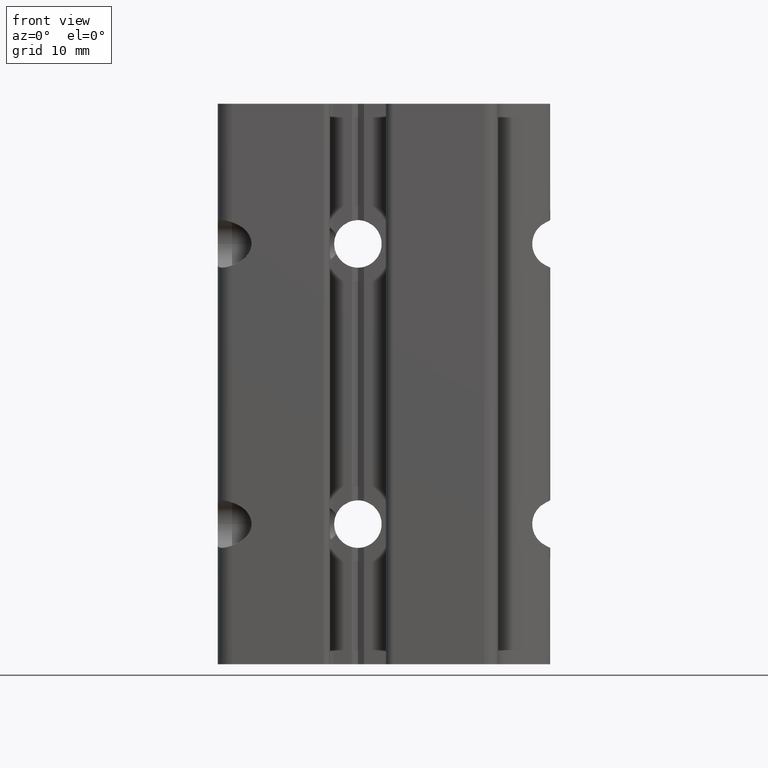
[diagram: clean part render]
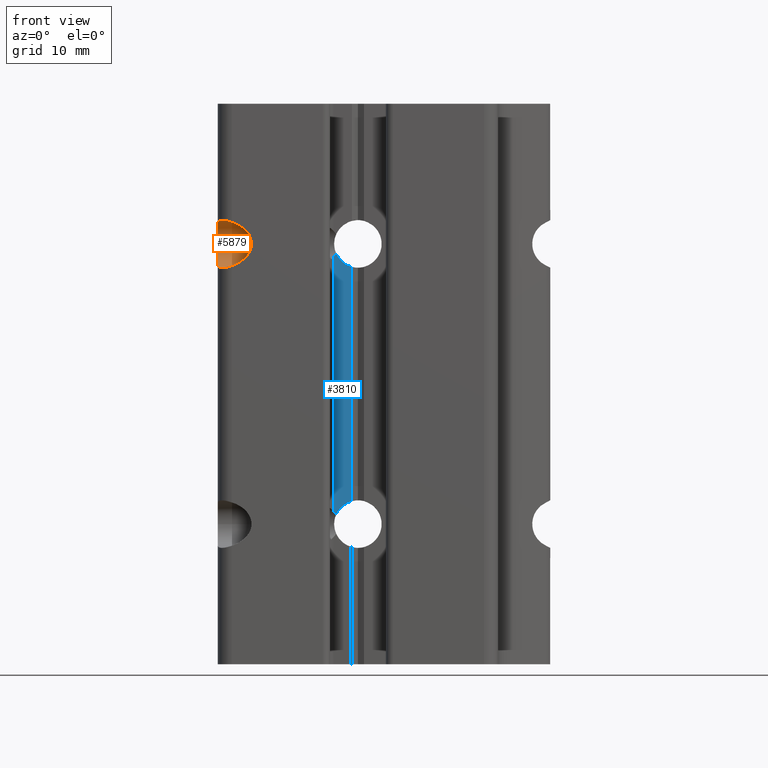
[diagram: same view with the hole feature highlighted: cylindrical wall and planar end face, labeled with their STEP entity ids]
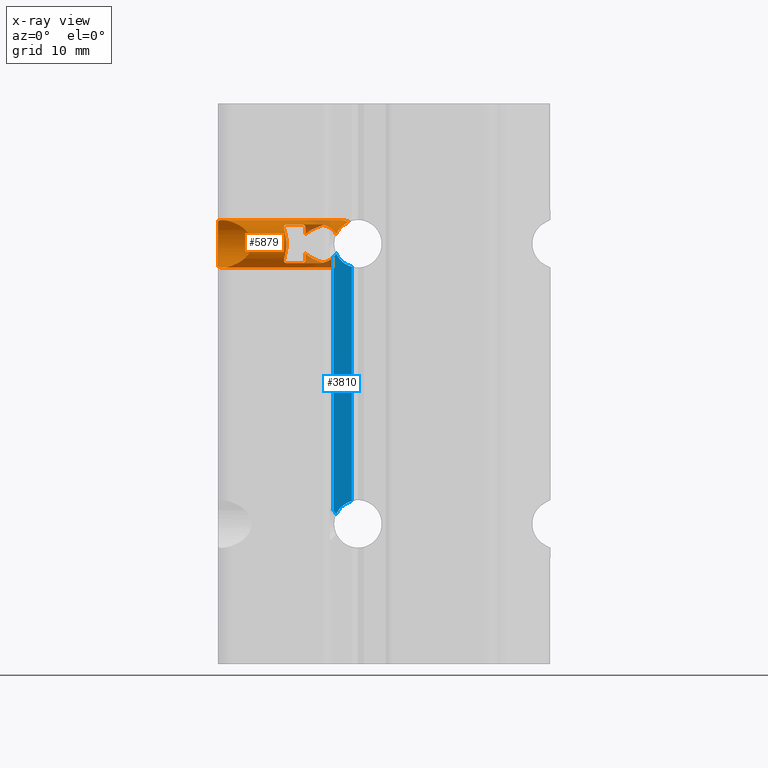
[diagram: x-ray of the same camera — body ghosted, the hole faces saturated]
A machine part, front view. The highlighted faces form one hole feature of diameter 6.8 mm: the cylindrical wall (entity #5879, orange) and its adjacent planar end face (entity #3810, blue) — they share a circular edge in the B-rep.
The next image is the same camera in x-ray (body ghosted, the hole faces saturated) — the bore reads through the body.
Wall:
#2442=CARTESIAN_POINT('',(-7.499971634736994,-3.106621162099145,61.381546457325761));
#2443=VERTEX_POINT('',#2442);
#2451=CARTESIAN_POINT('',(-7.499971634498252,-3.500182323104127,61.886832594038701));
#2452=VERTEX_POINT('',#2451);
#2453=CARTESIAN_POINT('',(-7.499971634498252,-7.500005773773410,59.999849360606760));
#2454=DIRECTION('',(-1.0,0.0,0.0));
#2455=DIRECTION('',(0.0,-1.0,0.0));
#2456=AXIS2_PLACEMENT_3D('',#2453,#2454,#2455);
#2457=ELLIPSE('',#2456,4.808326688644007,3.399998865186262);
#2458=EDGE_CURVE('',#2452,#2443,#2457,.T.);
#2482=CARTESIAN_POINT('',(-7.499971634736994,-3.106621162099145,58.618152263887758));
#2483=VERTEX_POINT('',#2482);
#2484=CARTESIAN_POINT('',(-7.499971634498252,-3.500182323104127,58.112866127174819));
#2485=VERTEX_POINT('',#2484);
#2486=CARTESIAN_POINT('',(-7.499971634498252,-7.500005773773410,59.999849360606760));
#2487=DIRECTION('',(-1.0,0.0,0.0));
#2488=DIRECTION('',(0.0,-1.0,0.0));
#2489=AXIS2_PLACEMENT_3D('',#2486,#2487,#2488);
#2490=ELLIPSE('',#2489,4.808326688644007,3.399998865186262);
#2491=EDGE_CURVE('',#2483,#2485,#2490,.T.);
#2575=CARTESIAN_POINT('',(-8.085764045833912,-5.257353564094956,62.749384761778387));
#2576=VERTEX_POINT('',#2575);
#2577=CARTESIAN_POINT('',(-8.085764045833457,-5.257353564094956,62.749384761778387));
#2578=CARTESIAN_POINT('',(-7.982279876050143,-5.153869394321646,62.749384810079718));
#2579=CARTESIAN_POINT('',(-7.767712126736114,-4.887898252004106,62.723348640122808));
#2580=CARTESIAN_POINT('',(-7.545883289831181,-4.405846209467654,62.582042972496716));
#2581=CARTESIAN_POINT('',(-7.464258504815916,-3.898807091223262,62.297594895798717));
#2582=CARTESIAN_POINT('',(-7.483344197200950,-3.616632889250013,62.027874678270258));
#2583=CARTESIAN_POINT('',(-7.499971634498252,-3.500182323104127,61.886832594038665));
#2584=B_SPLINE_CURVE_WITH_KNOTS('',3,(#2577,#2578,#2579,#2580,#2581,#2582,#2583),.UNSPECIFIED.,.F.,.U.,(4,1,1,1,4),(0.0,0.440287795231268,1.017256784750726,1.623386593909712,2.176012819118998),.UNSPECIFIED.);
#2585=EDGE_CURVE('',#2576,#2452,#2584,.T.);
#2623=CARTESIAN_POINT('',(-8.085764045833912,-5.257353564094956,57.250313959435132));
#2624=VERTEX_POINT('',#2623);
#2631=CARTESIAN_POINT('',(-7.499971634498252,-3.500182323104127,58.112866127174854));
#2632=CARTESIAN_POINT('',(-7.483344197200950,-3.616632889250013,57.971824042942927));
#2633=CARTESIAN_POINT('',(-7.464258504817735,-3.898807091225535,57.702103825415165));
#2634=CARTESIAN_POINT('',(-7.545883289831181,-4.405846209468109,57.417655748717124));
#2635=CARTESIAN_POINT('',(-7.767712126735660,-4.887898252004106,57.276350081090783));
#2636=CARTESIAN_POINT('',(-7.982279876050143,-5.153869394321646,57.250313911133802));
#2637=CARTESIAN_POINT('',(-8.085764045833457,-5.257353564094956,57.250313959435132));
#2638=B_SPLINE_CURVE_WITH_KNOTS('',3,(#2631,#2632,#2633,#2634,#2635,#2636,#2637),.UNSPECIFIED.,.F.,.U.,(4,1,1,1,4),(0.0,0.552626225210714,1.158756034367641,1.735725023887606,2.176012819118894),.UNSPECIFIED.);
#2639=EDGE_CURVE('',#2485,#2624,#2638,.T.);
#2686=CARTESIAN_POINT('',(-12.939314034142626,-10.110903551928914,62.749382496376917));
#2687=VERTEX_POINT('',#2686);
#2688=CARTESIAN_POINT('',(-12.939306397215695,-10.110911188848913,62.749390352457034));
#2689=DIRECTION('',(0.707106460385930,0.707107101987020,0.0));
#2690=VECTOR('',#2689,6.863956218785549);
#2691=LINE('',#2688,#2690);
#2692=EDGE_CURVE('',#2687,#2576,#2691,.T.);
#2725=CARTESIAN_POINT('',(-12.939314034142626,-10.110903551928914,57.250316224836602));
#2726=VERTEX_POINT('',#2725);
#2733=CARTESIAN_POINT('',(-8.085758611106254,-5.257358998817683,57.250308368756485));
#2734=DIRECTION('',(-0.707106460385930,-0.707107101987020,0.0));
#2735=VECTOR('',#2734,6.863956218785549);
#2736=LINE('',#2733,#2735);
#2737=EDGE_CURVE('',#2624,#2726,#2736,.T.);
#2779=CARTESIAN_POINT('',(-14.987549718576702,-10.179263963146695,59.999849360606760));
#2780=VERTEX_POINT('',#2779);
#2781=CARTESIAN_POINT('',(-14.987549718576702,-10.179263963146695,59.999849360606760));
#2782=CARTESIAN_POINT('',(-14.987549718576702,-10.179263963146695,60.216054923921057));
#2783=CARTESIAN_POINT('',(-14.954683020001994,-10.209085999840227,60.679811763384222));
#2784=CARTESIAN_POINT('',(-14.804351924289676,-10.325095156179032,61.287959628024339));
#2785=CARTESIAN_POINT('',(-14.553535148006631,-10.453815251347351,61.798996916411433));
#2786=CARTESIAN_POINT('',(-14.272771520226343,-10.536103065002862,62.151515232334880));
#2787=CARTESIAN_POINT('',(-13.946848644926376,-10.560540068313003,62.420359149813407));
#2788=CARTESIAN_POINT('',(-13.590389929570392,-10.511442196723692,62.615600314994836));
#2789=CARTESIAN_POINT('',(-13.230716702602422,-10.358376754295932,62.727108607660554));
#2790=CARTESIAN_POINT('',(-13.021038980597041,-10.192628498375598,62.749382458231651));
#2791=CARTESIAN_POINT('',(-12.939314034142626,-10.110903551928914,62.749382496376931));
#2792=B_SPLINE_CURVE_WITH_KNOTS('',3,(#2781,#2782,#2783,#2784,#2785,#2786,#2787,#2788,#2789,#2790,#2791),.UNSPECIFIED.,.F.,.U.,(4,1,1,1,1,1,1,1,4),(0.0,0.649604591902576,1.389873945673407,1.898969033738773,2.392249530753041,2.753909929009676,3.160419108480753,3.606886868526840,3.954781283208519),.UNSPECIFIED.);
#2793=EDGE_CURVE('',#2780,#2687,#2792,.T.);
#2795=CARTESIAN_POINT('',(-12.939314034142626,-10.110903551928914,57.250316224836588));
#2796=CARTESIAN_POINT('',(-13.021038980596586,-10.192628498374688,57.250316262981869));
#2797=CARTESIAN_POINT('',(-13.230716702601967,-10.358376754296387,57.272590113552567));
#2798=CARTESIAN_POINT('',(-13.590389929569938,-10.511442196722328,57.384098406218698));
#2799=CARTESIAN_POINT('',(-13.946848644926376,-10.560540068312548,57.579339571400212));
#2800=CARTESIAN_POINT('',(-14.272771520227707,-10.536103065002408,57.848183488879158));
#2801=CARTESIAN_POINT('',(-14.553535148006631,-10.453815251348260,58.200701804802257));
#2802=CARTESIAN_POINT('',(-14.804351924289676,-10.325095156179486,58.711739093189195));
#2803=CARTESIAN_POINT('',(-14.954683020002449,-10.209085999840227,59.319886957829283));
#2804=CARTESIAN_POINT('',(-14.987549718576702,-10.179263963146695,59.783643797292456));
#2805=CARTESIAN_POINT('',(-14.987549718576702,-10.179263963146695,59.999849360606760));
#2806=B_SPLINE_CURVE_WITH_KNOTS('',3,(#2795,#2796,#2797,#2798,#2799,#2800,#2801,#2802,#2803,#2804,#2805),.UNSPECIFIED.,.F.,.U.,(4,1,1,1,1,1,1,1,4),(0.0,0.347894414679059,0.794362174728163,1.200871354199902,1.562531752456226,2.055812249469818,2.564907337535183,3.305176691306011,3.954781283208590),.UNSPECIFIED.);
#2807=EDGE_CURVE('',#2726,#2780,#2806,.T.);
#3036=CARTESIAN_POINT('',(-19.999968859925957,-17.999996012029897,56.907931276393747));
#3037=VERTEX_POINT('',#3036);
#3044=CARTESIAN_POINT('',(-19.999968859925957,-15.191687652571545,59.999849360606760));
#3045=VERTEX_POINT('',#3044);
#3046=CARTESIAN_POINT('',(-19.999968859925957,-20.000014341215774,59.999849360606760));
#3047=DIRECTION('',(-1.0,0.0,0.0));
#3048=DIRECTION('',(0.0,-1.0,0.0));
#3049=AXIS2_PLACEMENT_3D('',#3046,#3047,#3048);
#3050=ELLIPSE('',#3049,4.808326688644007,3.399998865186262);
#3051=EDGE_CURVE('',#3045,#3037,#3050,.T.);
#3053=CARTESIAN_POINT('',(-19.999968859925957,-17.999996012029897,63.091767444819773));
#3054=VERTEX_POINT('',#3053);
#3055=CARTESIAN_POINT('',(-19.999968859925957,-20.000014341215774,59.999849360606760));
#3056=DIRECTION('',(-1.0,0.0,0.0));
#3057=DIRECTION('',(0.0,-1.0,0.0));
#3058=AXIS2_PLACEMENT_3D('',#3055,#3056,#3057);
#3059=ELLIPSE('',#3058,4.808326688644007,3.399998865186262);
#3060=EDGE_CURVE('',#3054,#3045,#3059,.T.);
#3085=CARTESIAN_POINT('',(-17.999969312036228,-19.999995559919626,63.091779006503430));
#3086=VERTEX_POINT('',#3085);
#3087=CARTESIAN_POINT('',(-17.999969312036228,-19.999995559919626,63.091779006503380));
#3088=CARTESIAN_POINT('',(-18.092872504029401,-19.999995559919626,63.121825738967217));
#3089=CARTESIAN_POINT('',(-18.314480211691262,-19.984584388185795,63.192439341211184));
#3090=CARTESIAN_POINT('',(-18.676196183403590,-19.897731123186986,63.296052420188943));
#3091=CARTESIAN_POINT('',(-19.078881972422550,-19.706041076997735,63.381544859075397));
#3092=CARTESIAN_POINT('',(-19.447535525353487,-19.407792979262467,63.411150445314888));
#3093=CARTESIAN_POINT('',(-19.750684159915181,-19.009055912690656,63.371113338430661));
#3094=CARTESIAN_POINT('',(-19.952533352585760,-18.533193688047049,63.260775731233750));
#3095=CARTESIAN_POINT('',(-19.999968859925957,-18.179933770232310,63.149964084927291));
#3096=CARTESIAN_POINT('',(-19.999968859925957,-17.999996012029897,63.091767444819745));
#3097=B_SPLINE_CURVE_WITH_KNOTS('',3,(#3087,#3088,#3089,#3090,#3091,#3092,#3093,#3094,#3095,#3096),.UNSPECIFIED.,.F.,.U.,(4,1,1,1,1,1,1,4),(0.0,0.293135411193030,0.697351950041764,1.153056265474572,1.645137220654180,2.108298422242484,2.646691606505831,3.215700329866476),.UNSPECIFIED.);
#3098=EDGE_CURVE('',#3086,#3054,#3097,.T.);
#3139=CARTESIAN_POINT('',(-17.999969312036228,-19.999995559919626,56.907919714710090));
#3140=VERTEX_POINT('',#3139);
#3147=CARTESIAN_POINT('',(-19.999968859925957,-17.999996012029897,56.907931276393775));
#3148=CARTESIAN_POINT('',(-19.999968859925957,-18.179933770232310,56.849734636286271));
#3149=CARTESIAN_POINT('',(-19.952533352584851,-18.533193688046595,56.738922989979535));
#3150=CARTESIAN_POINT('',(-19.750684159916091,-19.009055912691565,56.628585382782944));
#3151=CARTESIAN_POINT('',(-19.447535525353487,-19.407792979264286,56.588548275898610));
#3152=CARTESIAN_POINT('',(-19.078881972421641,-19.706041076996371,56.618153862138129));
#3153=CARTESIAN_POINT('',(-18.676196183404500,-19.897731123188805,56.703646301024570));
#3154=CARTESIAN_POINT('',(-18.314480211691262,-19.984584388186704,56.807259380002343));
#3155=CARTESIAN_POINT('',(-18.092872504029401,-19.999995559919626,56.877872982246302));
#3156=CARTESIAN_POINT('',(-17.999969312036228,-19.999995559919626,56.907919714710140));
#3157=B_SPLINE_CURVE_WITH_KNOTS('',3,(#3147,#3148,#3149,#3150,#3151,#3152,#3153,#3154,#3155,#3156),.UNSPECIFIED.,.F.,.U.,(4,1,1,1,1,1,1,4),(0.0,0.569008723360272,1.107401907624042,1.570563109212346,2.062644064391954,2.518348379824762,2.922564918673498,3.215700329866516),.UNSPECIFIED.);
#3158=EDGE_CURVE('',#3037,#3140,#3157,.T.);
#3208=CARTESIAN_POINT('',(-19.999950078647089,-19.999995559919626,59.999849360606760));
#3209=DIRECTION('',(0.0,-1.0,0.0));
#3210=DIRECTION('',(-1.0,0.0,0.0));
#3211=AXIS2_PLACEMENT_3D('',#3208,#3209,#3210);
#3212=ELLIPSE('',#3211,4.808322325758051,3.399998865186262);
#3213=EDGE_CURVE('',#3140,#3086,#3212,.T.);
#3424=CARTESIAN_POINT('',(-10.110887184508101,-12.939335806580857,57.250296966114320));
#3425=VERTEX_POINT('',#3424);
#3432=CARTESIAN_POINT('',(-10.110887184508101,-12.939335806580857,62.749401755099200));
#3433=VERTEX_POINT('',#3432);
#3434=CARTESIAN_POINT('',(-10.110887184508101,-12.939335806580857,62.749401755099214));
#3435=CARTESIAN_POINT('',(-10.212657414958812,-13.041106037030659,62.749401802594953));
#3436=CARTESIAN_POINT('',(-10.404476738819994,-13.299082307173649,62.716205503895978));
#3437=CARTESIAN_POINT('',(-10.545854627916924,-13.724451716261228,62.558479491808200));
#3438=CARTESIAN_POINT('',(-10.558735903113302,-14.126178981369321,62.291333786681221));
#3439=CARTESIAN_POINT('',(-10.498349647898522,-14.418212990749907,61.982581807830279));
#3440=CARTESIAN_POINT('',(-10.400040068862836,-14.670263546347996,61.587296133814121));
#3441=CARTESIAN_POINT('',(-10.283811465738381,-14.861070371195638,61.100854044643150));
#3442=CARTESIAN_POINT('',(-10.187901956999212,-14.978753877876898,60.477852794105331));
#3443=CARTESIAN_POINT('',(-10.167249099261426,-15.000801672009402,59.806107894091845));
#3444=CARTESIAN_POINT('',(-10.237231785106815,-14.922006228610826,59.143738361857750));
#3445=CARTESIAN_POINT('',(-10.359840514850021,-14.745803664244249,58.568168996130055));
#3446=CARTESIAN_POINT('',(-10.476888478872752,-14.493248162702457,58.110593991242496));
#3447=CARTESIAN_POINT('',(-10.545931506421766,-14.206725322264447,57.785970648885822));
#3448=CARTESIAN_POINT('',(-10.556306237373974,-13.902494032493905,57.553289336647524));
#3449=CARTESIAN_POINT('',(-10.502238647497506,-13.563494209844976,57.373967870183549));
#3450=CARTESIAN_POINT('',(-10.353083866772977,-13.221810932984226,57.270779796350254));
#3451=CARTESIAN_POINT('',(-10.186484135225783,-13.014932757298084,57.250296930833528));
#3452=CARTESIAN_POINT('',(-10.110887184508101,-12.939335806580857,57.250296966114306));
#3453=B_SPLINE_CURVE_WITH_KNOTS('',3,(#3434,#3435,#3436,#3437,#3438,#3439,#3440,#3441,#3442,#3443,#3444,#3445,#3446,#3447,#3448,#3449,#3450,#3451,#3452),.UNSPECIFIED.,.F.,.U.,(4,1,1,1,1,1,1,1,1,1,1,1,1,1,1,1,4),(0.0,0.434009623499088,0.950287193074688,1.398001269463963,1.864563906964387,2.227920565799847,2.830547978295661,3.461313744651695,4.143069341352543,4.837663163507572,5.462829787095446,5.976503883373006,6.435861686941121,6.768522796322628,7.119267400949641,7.588008964898661,7.909649085148575),.UNSPECIFIED.);
#3454=EDGE_CURVE('',#3433,#3425,#3453,.T.);
#3480=CARTESIAN_POINT('',(-5.257334492823247,-8.085783114958758,62.749399489948715));
#3481=VERTEX_POINT('',#3480);
#3482=CARTESIAN_POINT('',(-5.257329058657202,-8.085788549119870,62.749393899900809));
#3483=DIRECTION('',(-0.707106460385930,-0.707107101987020,0.0));
#3484=VECTOR('',#3483,6.863960042228078);
#3485=LINE('',#3482,#3484);
#3486=EDGE_CURVE('',#3481,#3433,#3485,.T.);
#3519=CARTESIAN_POINT('',(-5.257334492823247,-8.085783114958758,57.250299231264805));
#3520=VERTEX_POINT('',#3519);
#3527=CARTESIAN_POINT('',(-10.110879548347555,-12.939343442734469,57.250304821312710));
#3528=DIRECTION('',(0.707106460385930,0.707107101987020,0.0));
#3529=VECTOR('',#3528,6.863960042228078);
#3530=LINE('',#3527,#3529);
#3531=EDGE_CURVE('',#3425,#3520,#3530,.T.);
#3573=CARTESIAN_POINT('',(-3.500151814412675,-7.499998334969405,61.886840479374172));
#3574=VERTEX_POINT('',#3573);
#3575=CARTESIAN_POINT('',(-3.500151814412675,-7.499998334969405,61.886840479374165));
#3576=CARTESIAN_POINT('',(-3.612103970648604,-7.499998334969405,62.005491813362070));
#3577=CARTESIAN_POINT('',(-3.898319631759023,-7.514880772915149,62.255035954728278));
#3578=CARTESIAN_POINT('',(-4.396530902415179,-7.620779623664475,62.530030512514202));
#3579=CARTESIAN_POINT('',(-4.877847660605767,-7.828906770427693,62.685725179909490));
#3580=CARTESIAN_POINT('',(-5.151625859849901,-8.006491958504284,62.735811843439180));
#3581=CARTESIAN_POINT('',(-5.257334492823247,-8.085783114958758,62.749399489948672));
#3582=B_SPLINE_CURVE_WITH_KNOTS('',3,(#3575,#3576,#3577,#3578,#3579,#3580,#3581),.UNSPECIFIED.,.F.,.U.,(4,1,1,1,4),(0.0,0.490305732284151,1.131757988528495,1.718898860972804,2.117880005024734),.UNSPECIFIED.);
#3583=EDGE_CURVE('',#3574,#3481,#3582,.T.);
#3621=CARTESIAN_POINT('',(-3.500151814412675,-7.499998334969405,58.112858241839348));
#3622=VERTEX_POINT('',#3621);
#3629=CARTESIAN_POINT('',(-5.257334492823247,-8.085783114958758,57.250299231264847));
#3630=CARTESIAN_POINT('',(-5.151625859849901,-8.006491958504284,57.263886877774340));
#3631=CARTESIAN_POINT('',(-4.877847660606676,-7.828906770428603,57.313973541304037));
#3632=CARTESIAN_POINT('',(-4.396530902412906,-7.620779623662656,57.469668208699304));
#3633=CARTESIAN_POINT('',(-3.898319631759478,-7.514880772916513,57.744662766485263));
#3634=CARTESIAN_POINT('',(-3.612103970648604,-7.499998334969405,57.994206907851449));
#3635=CARTESIAN_POINT('',(-3.500151814412675,-7.499998334969405,58.112858241839362));
#3636=B_SPLINE_CURVE_WITH_KNOTS('',3,(#3629,#3630,#3631,#3632,#3633,#3634,#3635),.UNSPECIFIED.,.F.,.U.,(4,1,1,1,4),(0.0,0.398981144051929,0.986122016496259,1.627574272740602,2.117880005024756),.UNSPECIFIED.);
#3637=EDGE_CURVE('',#3520,#3622,#3636,.T.);
#3684=CARTESIAN_POINT('',(-3.106572072286326,-7.499998335053988,61.381528176877744));
#3685=VERTEX_POINT('',#3684);
#3686=CARTESIAN_POINT('',(-7.499964195700613,-7.499998334968950,59.999849360606760));
#3687=DIRECTION('',(-1.726350E-013,-1.0,0.0));
#3688=DIRECTION('',(-1.0,1.726350E-013,0.0));
#3689=AXIS2_PLACEMENT_3D('',#3686,#3687,#3688);
#3690=ELLIPSE('',#3689,4.808322325757221,3.399998865186262);
#3691=EDGE_CURVE('',#3685,#3574,#3690,.T.);
#3792=CARTESIAN_POINT('',(-3.106572072286326,-7.499998335053988,58.618170544335314));
#3793=VERTEX_POINT('',#3792);
#3801=CARTESIAN_POINT('',(-7.499964195700613,-7.499998334968950,59.999849360606760));
#3802=DIRECTION('',(-1.726350E-013,-1.0,0.0));
#3803=DIRECTION('',(-1.0,1.726350E-013,0.0));
#3804=AXIS2_PLACEMENT_3D('',#3801,#3802,#3803);
#3805=ELLIPSE('',#3804,4.808322325757221,3.399998865186262);
#3806=EDGE_CURVE('',#3622,#3793,#3805,.T.);
#5771=CARTESIAN_POINT('',(5.306351534401074,5.306329015088977,59.999849360606760));
#5772=DIRECTION('',(0.707106460385930,0.707107101987020,0.0));
#5773=DIRECTION('',(-0.707107101987020,0.707106460385930,0.0));
#5774=AXIS2_PLACEMENT_3D('',#5771,#5772,#5773);
#5775=CYLINDRICAL_SURFACE('',#5774,3.399998865186262);
#5776=ORIENTED_EDGE('',*,*,#2639,.T.);
#5777=ORIENTED_EDGE('',*,*,#2737,.T.);
#5778=ORIENTED_EDGE('',*,*,#2807,.T.);
#5779=CARTESIAN_POINT('',(-14.987549718576879,-10.179263963146823,59.999849360606760));
#5780=DIRECTION('',(-0.707106460385929,-0.707107101987021,0.0));
#5781=VECTOR('',#5780,7.088634345970156);
#5782=LINE('',#5779,#5781);
#5783=EDGE_CURVE('',#2780,#3045,#5782,.T.);
#5784=ORIENTED_EDGE('',*,*,#5783,.T.);
#5785=ORIENTED_EDGE('',*,*,#3051,.T.);
#5786=ORIENTED_EDGE('',*,*,#3158,.T.);
#5787=ORIENTED_EDGE('',*,*,#3213,.T.);
#5788=ORIENTED_EDGE('',*,*,#3098,.T.);
#5789=ORIENTED_EDGE('',*,*,#3060,.T.);
#5790=ORIENTED_EDGE('',*,*,#5783,.F.);
#5791=ORIENTED_EDGE('',*,*,#2793,.T.);
#5792=ORIENTED_EDGE('',*,*,#2692,.T.);
#5793=ORIENTED_EDGE('',*,*,#2585,.T.);
#5794=ORIENTED_EDGE('',*,*,#2458,.T.);
#5795=CARTESIAN_POINT('',(-3.141178742926059,-1.301148872441900,63.141040745541638));
#5796=VERTEX_POINT('',#5795);
#5797=CARTESIAN_POINT('',(-7.499971634736994,-3.106621162098691,61.381546457325733));
#5798=CARTESIAN_POINT('',(-7.347939182597656,-3.043647218097703,61.523136293173259));
#5799=CARTESIAN_POINT('',(-7.046703862092272,-2.918871381620647,61.756649473027082));
#5800=CARTESIAN_POINT('',(-6.413123401763642,-2.656433600709079,62.141417837782157));
#5801=CARTESIAN_POINT('',(-5.661512972248602,-2.345106117021260,62.479147288119258));
#5802=CARTESIAN_POINT('',(-4.515755912890654,-1.870517922422096,62.862621367123474));
#5803=CARTESIAN_POINT('',(-3.689338187131853,-1.528203322421177,63.046991898901780));
#5804=CARTESIAN_POINT('',(-3.141173658591470,-1.301146444533060,63.141041523587035));
#5805=B_SPLINE_CURVE_WITH_KNOTS('',3,(#5797,#5798,#5799,#5800,#5801,#5802,#5803,#5804),.UNSPECIFIED.,.F.,.U.,(4,1,1,1,1,4),(0.0,0.651823287259006,1.199065122779237,2.357121415700803,3.288301367612448,5.091394312120824),.UNSPECIFIED.);
#5806=EDGE_CURVE('',#2443,#5796,#5805,.T.);
#5807=ORIENTED_EDGE('',*,*,#5806,.T.);
#5808=CARTESIAN_POINT('',(-1.301099509130381,-3.141199189896724,63.141037491106978));
#5809=VERTEX_POINT('',#5808);
#5810=CARTESIAN_POINT('',(-1.301099654160672,-3.141200737241406,63.141038688015726));
#5811=CARTESIAN_POINT('',(-1.425602030270290,-3.089637157745156,63.192613251802577));
#5812=CARTESIAN_POINT('',(-1.761751684374261,-2.926901485215517,63.315232930439350));
#5813=CARTESIAN_POINT('',(-2.236116056913033,-2.589883349914544,63.412347785417310));
#5814=CARTESIAN_POINT('',(-2.675696180327577,-2.124531261959419,63.394120361548140));
#5815=CARTESIAN_POINT('',(-2.959441170881170,-1.696487752180602,63.292082667858267));
#5816=CARTESIAN_POINT('',(-3.093989195251980,-1.414961981879446,63.188151589910035));
#5817=CARTESIAN_POINT('',(-3.141120915602294,-1.301143454638454,63.140996024312408));
#5818=B_SPLINE_CURVE_WITH_KNOTS('',3,(#5810,#5811,#5812,#5813,#5814,#5815,#5816,#5817),.UNSPECIFIED.,.F.,.U.,(4,1,1,1,1,4),(8.708110578906739,9.140914040798535,9.883991441687270,10.458459637223791,11.047888926127650,11.443632711919514),.UNSPECIFIED.);
#5819=EDGE_CURVE('',#5809,#5796,#5818,.T.);
#5820=ORIENTED_EDGE('',*,*,#5819,.F.);
#5821=CARTESIAN_POINT('',(-1.301102256410559,-3.141204944060974,63.141036610408186));
#5822=CARTESIAN_POINT('',(-1.545576328639982,-3.731416619749780,63.039771862926031));
#5823=CARTESIAN_POINT('',(-1.915812862782786,-4.625249978200827,62.837030954139962));
#5824=CARTESIAN_POINT('',(-2.406332923746049,-5.809470290309491,62.420754049576651));
#5825=CARTESIAN_POINT('',(-2.707665283063307,-6.536951548695924,62.073847767016971));
#5826=CARTESIAN_POINT('',(-2.942553416050942,-7.104022013724261,61.713827768478303));
#5827=CARTESIAN_POINT('',(-3.051068275904072,-7.366000231090766,61.506324203036350));
#5828=CARTESIAN_POINT('',(-3.106572072286326,-7.499998335053533,61.381528176877779));
#5829=B_SPLINE_CURVE_WITH_KNOTS('',3,(#5821,#5822,#5823,#5824,#5825,#5826,#5827,#5828),.UNSPECIFIED.,.F.,.U.,(4,1,1,1,1,4),(0.0,1.941579244944917,2.958218911794500,4.040175705833885,4.516990291452906,5.091404340221037),.UNSPECIFIED.);
#5830=EDGE_CURVE('',#5809,#3685,#5829,.T.);
#5831=ORIENTED_EDGE('',*,*,#5830,.T.);
#5832=ORIENTED_EDGE('',*,*,#3691,.T.);
#5833=ORIENTED_EDGE('',*,*,#3583,.T.);
#5834=ORIENTED_EDGE('',*,*,#3486,.T.);
#5835=ORIENTED_EDGE('',*,*,#3454,.T.);
#5836=ORIENTED_EDGE('',*,*,#3531,.T.);
#5837=ORIENTED_EDGE('',*,*,#3637,.T.);
#5838=ORIENTED_EDGE('',*,*,#3806,.T.);
#5839=CARTESIAN_POINT('',(-1.301099509130381,-3.141199189896724,56.858661230106499));
#5840=VERTEX_POINT('',#5839);
#5841=CARTESIAN_POINT('',(-3.106572072286326,-7.499998335053988,58.618170544335307));
#5842=CARTESIAN_POINT('',(-3.051068275904072,-7.366000231091221,58.493374518176594));
#5843=CARTESIAN_POINT('',(-2.942553416050032,-7.104022013722897,58.285870952735394));
#5844=CARTESIAN_POINT('',(-2.707665283062852,-6.536951548694560,57.925850954194871));
#5845=CARTESIAN_POINT('',(-2.406332923743776,-5.809470290303580,57.578944671635398));
#5846=CARTESIAN_POINT('',(-1.915812862781877,-4.625249978197189,57.162667767072008));
#5847=CARTESIAN_POINT('',(-1.545576328638617,-3.731416619746597,56.959926858287012));
#5848=CARTESIAN_POINT('',(-1.301102256410559,-3.141204944060974,56.858662110805369));
#5849=B_SPLINE_CURVE_WITH_KNOTS('',3,(#5841,#5842,#5843,#5844,#5845,#5846,#5847,#5848),.UNSPECIFIED.,.F.,.U.,(4,1,1,1,1,4),(0.0,0.574414048768884,1.051228634387344,2.133185428432214,3.149825095286392,5.091404340221116),.UNSPECIFIED.);
#5850=EDGE_CURVE('',#3793,#5840,#5849,.T.);
#5851=ORIENTED_EDGE('',*,*,#5850,.T.);
#5852=CARTESIAN_POINT('',(-3.141178742926059,-1.301148872441900,56.858657975671839));
#5853=VERTEX_POINT('',#5852);
#5854=CARTESIAN_POINT('',(-3.141120915603039,-1.301143454638759,56.858702696901354));
#5855=CARTESIAN_POINT('',(-3.093989195252676,-1.414961981880401,56.811547131303584));
#5856=CARTESIAN_POINT('',(-2.959441170881854,-1.696487752182635,56.707616053355338));
#5857=CARTESIAN_POINT('',(-2.675696180326668,-2.124531261960328,56.605578359665273));
#5858=CARTESIAN_POINT('',(-2.236116056912579,-2.589883349914089,56.587350935796259));
#5859=CARTESIAN_POINT('',(-1.761751684373313,-2.926901485214106,56.684465790774354));
#5860=CARTESIAN_POINT('',(-1.425602030269794,-3.089637157744620,56.807085469411149));
#5861=CARTESIAN_POINT('',(-1.301099654160498,-3.141200737240952,56.858660033197836));
#5862=B_SPLINE_CURVE_WITH_KNOTS('',3,(#5854,#5855,#5856,#5857,#5858,#5859,#5860,#5861),.UNSPECIFIED.,.F.,.U.,(4,1,1,1,1,4),(5.118430219506499,5.514174005299449,6.103603294202678,6.678071489740142,7.421148890628818,7.853952352519591),.UNSPECIFIED.);
#5863=EDGE_CURVE('',#5853,#5840,#5862,.T.);
#5864=ORIENTED_EDGE('',*,*,#5863,.F.);
#5865=CARTESIAN_POINT('',(-3.141173658591470,-1.301146444533060,56.858657197626371));
#5866=CARTESIAN_POINT('',(-3.689338187132307,-1.528203322421177,56.952706822311626));
#5867=CARTESIAN_POINT('',(-4.515755912892018,-1.870517922424369,57.137077354089890));
#5868=CARTESIAN_POINT('',(-5.661512972247238,-2.345106117019441,57.520551433094354));
#5869=CARTESIAN_POINT('',(-6.413123401763187,-2.656433600708624,57.858280883431341));
#5870=CARTESIAN_POINT('',(-7.046703862092272,-2.918871381620193,58.243049248186452));
#5871=CARTESIAN_POINT('',(-7.347939182597656,-3.043647218097703,58.476562428040260));
#5872=CARTESIAN_POINT('',(-7.499971634736994,-3.106621162098691,58.618152263887787));
#5873=B_SPLINE_CURVE_WITH_KNOTS('',3,(#5865,#5866,#5867,#5868,#5869,#5870,#5871,#5872),.UNSPECIFIED.,.F.,.U.,(4,1,1,1,1,4),(0.0,1.803092944508794,2.734272896420035,3.892329189341603,4.439571024861829,5.091394312120834),.UNSPECIFIED.);
#5874=EDGE_CURVE('',#5853,#2483,#5873,.T.);
#5875=ORIENTED_EDGE('',*,*,#5874,.T.);
#5876=ORIENTED_EDGE('',*,*,#2491,.T.);
#5877=EDGE_LOOP('',(#5776,#5777,#5778,#5784,#5785,#5786,#5787,#5788,#5789,#5790,#5791,#5792,#5793,#5794,#5807,#5820,#5831,#5832,#5833,#5834,#5835,#5836,#5837,#5838,#5851,#5864,#5875,#5876));
#5878=FACE_OUTER_BOUND('',#5877,.T.);
#5879=ADVANCED_FACE('',(#5878),#5775,.F.);
End face:
#3609=CARTESIAN_POINT('',(-3.500151814412675,-7.499998334969405,21.886856979532695));
#3610=VERTEX_POINT('',#3609);
#3621=CARTESIAN_POINT('',(-3.500151814412675,-7.499998334969405,58.112858241839348));
#3622=VERTEX_POINT('',#3621);
#3623=CARTESIAN_POINT('',(-3.500151814412675,-7.499998334969405,58.112858241839326));
#3624=DIRECTION('',(0.0,0.0,-1.0));
#3625=VECTOR('',#3624,36.226001262306589);
#3626=LINE('',#3623,#3625);
#3627=EDGE_CURVE('',#3622,#3610,#3626,.T.);
#3760=CARTESIAN_POINT('',(-3.500151814412675,-7.499998334969405,79.999715220555601));
#3761=DIRECTION('',(1.726350E-013,1.0,0.0));
#3762=DIRECTION('',(1.0,-1.726350E-013,0.0));
#3763=AXIS2_PLACEMENT_3D('',#3760,#3761,#3762);
#3764=PLANE('',#3763);
#3765=ORIENTED_EDGE('',*,*,#3627,.T.);
#3766=CARTESIAN_POINT('',(-3.106572072286326,-7.499998335053988,21.381544677036501));
#3767=VERTEX_POINT('',#3766);
#3768=CARTESIAN_POINT('',(-7.499964195700613,-7.499998334968950,19.999865860765141));
#3769=DIRECTION('',(-1.726350E-013,-1.0,0.0));
#3770=DIRECTION('',(-1.0,1.726350E-013,0.0));
#3771=AXIS2_PLACEMENT_3D('',#3768,#3769,#3770);
#3772=ELLIPSE('',#3771,4.808322325757221,3.399998865186262);
#3773=EDGE_CURVE('',#3767,#3610,#3772,.T.);
#3774=ORIENTED_EDGE('',*,*,#3773,.F.);
#3775=CARTESIAN_POINT('',(-0.865997117744882,-7.499998334969860,23.287721549565475));
#3776=VERTEX_POINT('',#3775);
#3777=CARTESIAN_POINT('',(0.000026699994123,-7.499998335138116,19.999865860765141));
#3778=DIRECTION('',(-1.527475E-013,-1.0,0.0));
#3779=DIRECTION('',(1.0,-1.527475E-013,0.0));
#3780=AXIS2_PLACEMENT_3D('',#3777,#3778,#3779);
#3781=CIRCLE('',#3780,3.399998865186262);
#3782=EDGE_CURVE('',#3776,#3767,#3781,.T.);
#3783=ORIENTED_EDGE('',*,*,#3782,.F.);
#3784=CARTESIAN_POINT('',(-0.865997117744882,-7.499998334969860,56.711993671806383));
#3785=VERTEX_POINT('',#3784);
#3786=CARTESIAN_POINT('',(-0.865997117744882,-7.499998334969860,56.711993671806383));
#3787=DIRECTION('',(0.0,0.0,-1.0));
#3788=VECTOR('',#3787,33.424272122240907);
#3789=LINE('',#3786,#3788);
#3790=EDGE_CURVE('',#3785,#3776,#3789,.T.);
#3791=ORIENTED_EDGE('',*,*,#3790,.F.);
#3792=CARTESIAN_POINT('',(-3.106572072286326,-7.499998335053988,58.618170544335314));
#3793=VERTEX_POINT('',#3792);
#3794=CARTESIAN_POINT('',(0.000026699994123,-7.499998335138116,59.999849360606703));
#3795=DIRECTION('',(-1.527475E-013,-1.0,0.0));
#3796=DIRECTION('',(1.0,-1.527475E-013,0.0));
#3797=AXIS2_PLACEMENT_3D('',#3794,#3795,#3796);
#3798=CIRCLE('',#3797,3.399998865186262);
#3799=EDGE_CURVE('',#3793,#3785,#3798,.T.);
#3800=ORIENTED_EDGE('',*,*,#3799,.F.);
#3801=CARTESIAN_POINT('',(-7.499964195700613,-7.499998334968950,59.999849360606760));
#3802=DIRECTION('',(-1.726350E-013,-1.0,0.0));
#3803=DIRECTION('',(-1.0,1.726350E-013,0.0));
#3804=AXIS2_PLACEMENT_3D('',#3801,#3802,#3803);
#3805=ELLIPSE('',#3804,4.808322325757221,3.399998865186262);
#3806=EDGE_CURVE('',#3622,#3793,#3805,.T.);
#3807=ORIENTED_EDGE('',*,*,#3806,.F.);
#3808=EDGE_LOOP('',(#3765,#3774,#3783,#3791,#3800,#3807));
#3809=FACE_OUTER_BOUND('',#3808,.T.);
#3810=ADVANCED_FACE('',(#3809),#3764,.F.);